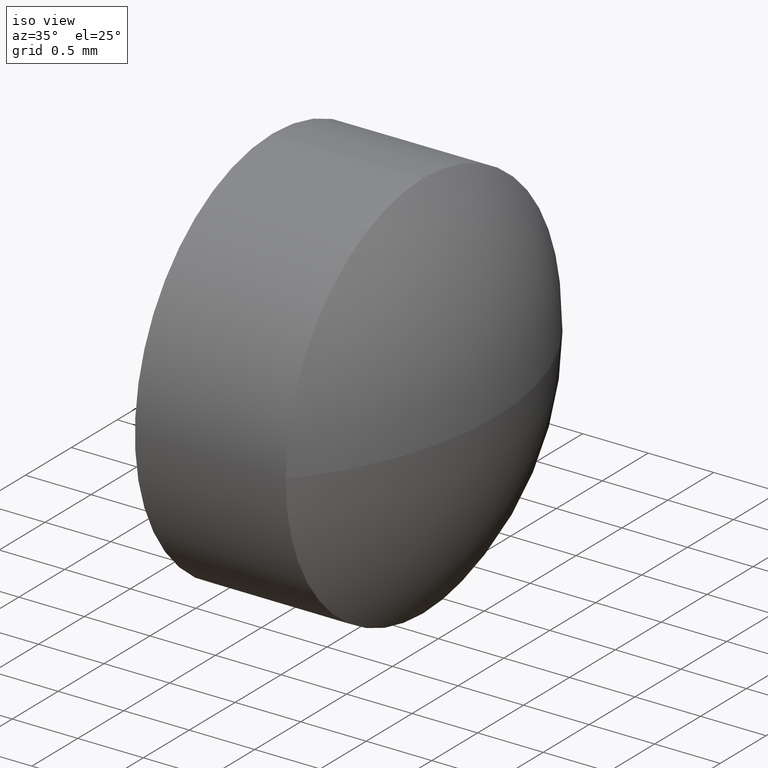
[diagram: clean part render]
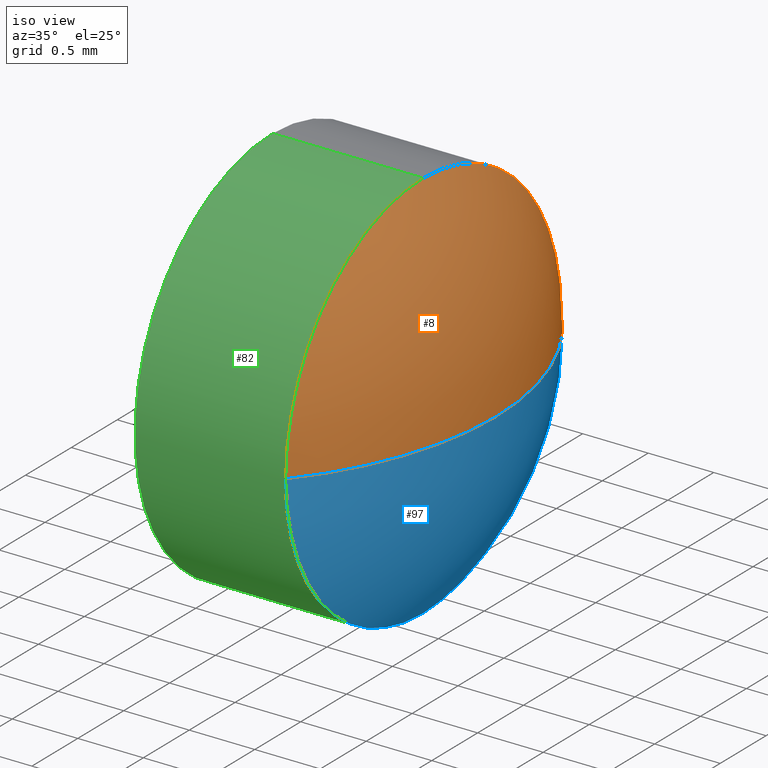
[diagram: same view with three faces highlighted in distinct colors, each labeled with its STEP entity id]
A machine part, iso view with three faces highlighted in distinct colors.
Their STEP definitions:

[orange] entity #8 — the highlighted spherical surface has radius 2.3205 mm.
#1 = EDGE_CURVE ( 'NONE', #60, #130, #117, .T. ) ;
#4 = CARTESIAN_POINT ( 'NONE',  ( 657.5211266645158000, -16.36571679359242600, 0.0000000000000000000 ) ) ;
#8 = ADVANCED_FACE ( 'NONE', ( #15 ), #142, .T. ) ;
#15 = FACE_OUTER_BOUND ( 'NONE', #134, .T. ) ;
#16 = AXIS2_PLACEMENT_3D ( 'NONE', #86, #154, #159 ) ;
#26 = CARTESIAN_POINT ( 'NONE',  ( 657.5211266645158000, -16.36571679359242600, 0.0000000000000000000 ) ) ;
#32 = DIRECTION ( 'NONE',  ( 0.0000000000000000000, 1.000000000000000000, 0.0000000000000000000 ) ) ;
#39 = DIRECTION ( 'NONE',  ( 0.0000000000000000000, 1.000000000000000000, 1.224646799147353200E-016 ) ) ;
#43 = CIRCLE ( 'NONE', #50, 2.320454545454597700 ) ;
#49 = CARTESIAN_POINT ( 'NONE',  ( 659.2915812099703300, -16.36571679359241200, 1.499999999999999600 ) ) ;
#50 = AXIS2_PLACEMENT_3D ( 'NONE', #26, #74, #122 ) ;
#56 = ORIENTED_EDGE ( 'NONE', *, *, #1, .F. ) ;
#57 = EDGE_CURVE ( 'NONE', #143, #60, #90, .T. ) ;
#60 = VERTEX_POINT ( 'NONE', #49 ) ;
#61 = DIRECTION ( 'NONE',  ( 0.0000000000000000000, 0.0000000000000000000, 1.000000000000000000 ) ) ;
#64 = CARTESIAN_POINT ( 'NONE',  ( 659.2915812099703300, -14.86571679359239800, 0.0000000000000000000 ) ) ;
#66 = AXIS2_PLACEMENT_3D ( 'NONE', #4, #87, #32 ) ;
#74 = DIRECTION ( 'NONE',  ( -0.0000000000000000000, 0.0000000000000000000, 1.000000000000000000 ) ) ;
#75 = CARTESIAN_POINT ( 'NONE',  ( 659.2915812099703300, -17.86571679359244100, -1.836970198721050400E-016 ) ) ;
#86 = CARTESIAN_POINT ( 'NONE',  ( 659.2915812099703300, -16.36571679359241200, 0.0000000000000000000 ) ) ;
#87 = DIRECTION ( 'NONE',  ( -0.0000000000000000000, 0.0000000000000000000, -1.000000000000000000 ) ) ;
#89 = AXIS2_PLACEMENT_3D ( 'NONE', #133, #100, #61 ) ;
#90 = CIRCLE ( 'NONE', #89, 1.499999999999999600 ) ;
#100 = DIRECTION ( 'NONE',  ( -1.000000000000000000, -0.0000000000000000000, -0.0000000000000000000 ) ) ;
#117 = CIRCLE ( 'NONE', #16, 1.499999999999999600 ) ;
#122 = DIRECTION ( 'NONE',  ( 1.000000000000000000, 0.0000000000000000000, 0.0000000000000000000 ) ) ;
#126 = CIRCLE ( 'NONE', #161, 2.320454545454576900 ) ;
#130 = VERTEX_POINT ( 'NONE', #64 ) ;
#133 = CARTESIAN_POINT ( 'NONE',  ( 659.2915812099703300, -16.36571679359241200, 0.0000000000000000000 ) ) ;
#134 = EDGE_LOOP ( 'NONE', ( #185, #170, #56, #164 ) ) ;
#136 = CARTESIAN_POINT ( 'NONE',  ( 657.5211266645158000, -16.36571679359242600, 0.0000000000000000000 ) ) ;
#142 = SPHERICAL_SURFACE ( 'NONE', #66, 2.320454545454576900 ) ;
#143 = VERTEX_POINT ( 'NONE', #75 ) ;
#154 = DIRECTION ( 'NONE',  ( -1.000000000000000000, -0.0000000000000000000, -0.0000000000000000000 ) ) ;
#159 = DIRECTION ( 'NONE',  ( 0.0000000000000000000, 0.0000000000000000000, 1.000000000000000000 ) ) ;
#161 = AXIS2_PLACEMENT_3D ( 'NONE', #136, #184, #39 ) ;
#163 = CARTESIAN_POINT ( 'NONE',  ( 659.8415812099704000, -16.36571679359242600, 0.0000000000000000000 ) ) ;
#164 = ORIENTED_EDGE ( 'NONE', *, *, #57, .F. ) ;
#167 = EDGE_CURVE ( 'NONE', #186, #130, #43, .T. ) ;
#170 = ORIENTED_EDGE ( 'NONE', *, *, #167, .T. ) ;
#175 = EDGE_CURVE ( 'NONE', #186, #143, #126, .T. ) ;
#184 = DIRECTION ( 'NONE',  ( 0.0000000000000000000, 1.224646799147353200E-016, -1.000000000000000000 ) ) ;
#185 = ORIENTED_EDGE ( 'NONE', *, *, #175, .F. ) ;
#186 = VERTEX_POINT ( 'NONE', #163 ) ;

[blue] entity #97 — the highlighted spherical surface has radius 2.3205 mm.
#3 = DIRECTION ( 'NONE',  ( 0.0000000000000000000, 0.0000000000000000000, 1.000000000000000000 ) ) ;
#9 = SPHERICAL_SURFACE ( 'NONE', #28, 2.320454545454576900 ) ;
#12 = EDGE_CURVE ( 'NONE', #146, #143, #98, .T. ) ;
#17 = EDGE_CURVE ( 'NONE', #130, #146, #69, .T. ) ;
#26 = CARTESIAN_POINT ( 'NONE',  ( 657.5211266645158000, -16.36571679359242600, 0.0000000000000000000 ) ) ;
#28 = AXIS2_PLACEMENT_3D ( 'NONE', #171, #109, #125 ) ;
#29 = DIRECTION ( 'NONE',  ( 0.0000000000000000000, 0.0000000000000000000, 1.000000000000000000 ) ) ;
#39 = DIRECTION ( 'NONE',  ( 0.0000000000000000000, 1.000000000000000000, 1.224646799147353200E-016 ) ) ;
#43 = CIRCLE ( 'NONE', #50, 2.320454545454597700 ) ;
#47 = CARTESIAN_POINT ( 'NONE',  ( 659.2915812099703300, -16.36571679359241200, 0.0000000000000000000 ) ) ;
#50 = AXIS2_PLACEMENT_3D ( 'NONE', #26, #74, #122 ) ;
#64 = CARTESIAN_POINT ( 'NONE',  ( 659.2915812099703300, -14.86571679359239800, 0.0000000000000000000 ) ) ;
#67 = ORIENTED_EDGE ( 'NONE', *, *, #175, .T. ) ;
#69 = CIRCLE ( 'NONE', #179, 1.499999999999999600 ) ;
#70 = ORIENTED_EDGE ( 'NONE', *, *, #17, .F. ) ;
#74 = DIRECTION ( 'NONE',  ( -0.0000000000000000000, 0.0000000000000000000, 1.000000000000000000 ) ) ;
#75 = CARTESIAN_POINT ( 'NONE',  ( 659.2915812099703300, -17.86571679359244100, -1.836970198721050400E-016 ) ) ;
#88 = EDGE_LOOP ( 'NONE', ( #152, #67, #96, #70 ) ) ;
#95 = AXIS2_PLACEMENT_3D ( 'NONE', #121, #104, #3 ) ;
#96 = ORIENTED_EDGE ( 'NONE', *, *, #12, .F. ) ;
#97 = ADVANCED_FACE ( 'NONE', ( #149 ), #9, .T. ) ;
#98 = CIRCLE ( 'NONE', #95, 1.499999999999999600 ) ;
#104 = DIRECTION ( 'NONE',  ( -1.000000000000000000, -0.0000000000000000000, -0.0000000000000000000 ) ) ;
#109 = DIRECTION ( 'NONE',  ( -0.0000000000000000000, 0.0000000000000000000, -1.000000000000000000 ) ) ;
#119 = DIRECTION ( 'NONE',  ( -1.000000000000000000, -0.0000000000000000000, -0.0000000000000000000 ) ) ;
#121 = CARTESIAN_POINT ( 'NONE',  ( 659.2915812099703300, -16.36571679359241200, 0.0000000000000000000 ) ) ;
#122 = DIRECTION ( 'NONE',  ( 1.000000000000000000, 0.0000000000000000000, 0.0000000000000000000 ) ) ;
#125 = DIRECTION ( 'NONE',  ( 0.0000000000000000000, 1.000000000000000000, 0.0000000000000000000 ) ) ;
#126 = CIRCLE ( 'NONE', #161, 2.320454545454576900 ) ;
#130 = VERTEX_POINT ( 'NONE', #64 ) ;
#136 = CARTESIAN_POINT ( 'NONE',  ( 657.5211266645158000, -16.36571679359242600, 0.0000000000000000000 ) ) ;
#143 = VERTEX_POINT ( 'NONE', #75 ) ;
#146 = VERTEX_POINT ( 'NONE', #165 ) ;
#149 = FACE_OUTER_BOUND ( 'NONE', #88, .T. ) ;
#152 = ORIENTED_EDGE ( 'NONE', *, *, #167, .F. ) ;
#161 = AXIS2_PLACEMENT_3D ( 'NONE', #136, #184, #39 ) ;
#163 = CARTESIAN_POINT ( 'NONE',  ( 659.8415812099704000, -16.36571679359242600, 0.0000000000000000000 ) ) ;
#165 = CARTESIAN_POINT ( 'NONE',  ( 659.2915812099703300, -16.36571679359241200, -1.499999999999999600 ) ) ;
#167 = EDGE_CURVE ( 'NONE', #186, #130, #43, .T. ) ;
#171 = CARTESIAN_POINT ( 'NONE',  ( 657.5211266645158000, -16.36571679359242600, 0.0000000000000000000 ) ) ;
#175 = EDGE_CURVE ( 'NONE', #186, #143, #126, .T. ) ;
#179 = AXIS2_PLACEMENT_3D ( 'NONE', #47, #119, #29 ) ;
#184 = DIRECTION ( 'NONE',  ( 0.0000000000000000000, 1.224646799147353200E-016, -1.000000000000000000 ) ) ;
#186 = VERTEX_POINT ( 'NONE', #163 ) ;

[green] entity #82 — the highlighted cylindrical surface (partial cylindrical patch) has radius 1.5 mm, axis along (-1, -0, -0).
#3 = DIRECTION ( 'NONE',  ( 0.0000000000000000000, 0.0000000000000000000, 1.000000000000000000 ) ) ;
#12 = EDGE_CURVE ( 'NONE', #146, #143, #98, .T. ) ;
#14 = LINE ( 'NONE', #21, #79 ) ;
#21 = CARTESIAN_POINT ( 'NONE',  ( 657.7378520608252800, -16.36571679359241200, -1.499999999999999600 ) ) ;
#24 = ORIENTED_EDGE ( 'NONE', *, *, #78, .F. ) ;
#25 = DIRECTION ( 'NONE',  ( -1.000000000000000000, -0.0000000000000000000, -0.0000000000000000000 ) ) ;
#30 = DIRECTION ( 'NONE',  ( -1.000000000000000000, -0.0000000000000000000, -0.0000000000000000000 ) ) ;
#35 = CYLINDRICAL_SURFACE ( 'NONE', #151, 1.499999999999999600 ) ;
#37 = CARTESIAN_POINT ( 'NONE',  ( 657.7378520608252800, -16.36571679359241200, 1.499999999999999600 ) ) ;
#46 = AXIS2_PLACEMENT_3D ( 'NONE', #73, #107, #156 ) ;
#48 = CARTESIAN_POINT ( 'NONE',  ( 657.7378520608252800, -16.36571679359241200, 0.0000000000000000000 ) ) ;
#49 = CARTESIAN_POINT ( 'NONE',  ( 659.2915812099703300, -16.36571679359241200, 1.499999999999999600 ) ) ;
#53 = VERTEX_POINT ( 'NONE', #103 ) ;
#54 = EDGE_CURVE ( 'NONE', #83, #53, #71, .T. ) ;
#57 = EDGE_CURVE ( 'NONE', #143, #60, #90, .T. ) ;
#60 = VERTEX_POINT ( 'NONE', #49 ) ;
#61 = DIRECTION ( 'NONE',  ( 0.0000000000000000000, 0.0000000000000000000, 1.000000000000000000 ) ) ;
#63 = VECTOR ( 'NONE', #25, 1000.000000000000000 ) ;
#71 = CIRCLE ( 'NONE', #46, 1.499999999999999600 ) ;
#73 = CARTESIAN_POINT ( 'NONE',  ( 658.1415812099703500, -16.36571679359241200, 0.0000000000000000000 ) ) ;
#75 = CARTESIAN_POINT ( 'NONE',  ( 659.2915812099703300, -17.86571679359244100, -1.836970198721050400E-016 ) ) ;
#78 = EDGE_CURVE ( 'NONE', #146, #83, #14, .T. ) ;
#79 = VECTOR ( 'NONE', #30, 1000.000000000000000 ) ;
#80 = EDGE_LOOP ( 'NONE', ( #24, #139, #172, #106, #131 ) ) ;
#82 = ADVANCED_FACE ( 'NONE', ( #157 ), #35, .T. ) ;
#83 = VERTEX_POINT ( 'NONE', #137 ) ;
#89 = AXIS2_PLACEMENT_3D ( 'NONE', #133, #100, #61 ) ;
#90 = CIRCLE ( 'NONE', #89, 1.499999999999999600 ) ;
#95 = AXIS2_PLACEMENT_3D ( 'NONE', #121, #104, #3 ) ;
#98 = CIRCLE ( 'NONE', #95, 1.499999999999999600 ) ;
#100 = DIRECTION ( 'NONE',  ( -1.000000000000000000, -0.0000000000000000000, -0.0000000000000000000 ) ) ;
#103 = CARTESIAN_POINT ( 'NONE',  ( 658.1415812099703500, -16.36571679359241200, 1.499999999999999600 ) ) ;
#104 = DIRECTION ( 'NONE',  ( -1.000000000000000000, -0.0000000000000000000, -0.0000000000000000000 ) ) ;
#106 = ORIENTED_EDGE ( 'NONE', *, *, #118, .T. ) ;
#107 = DIRECTION ( 'NONE',  ( -1.000000000000000000, -0.0000000000000000000, -0.0000000000000000000 ) ) ;
#118 = EDGE_CURVE ( 'NONE', #60, #53, #145, .T. ) ;
#121 = CARTESIAN_POINT ( 'NONE',  ( 659.2915812099703300, -16.36571679359241200, 0.0000000000000000000 ) ) ;
#131 = ORIENTED_EDGE ( 'NONE', *, *, #54, .F. ) ;
#133 = CARTESIAN_POINT ( 'NONE',  ( 659.2915812099703300, -16.36571679359241200, 0.0000000000000000000 ) ) ;
#137 = CARTESIAN_POINT ( 'NONE',  ( 658.1415812099703500, -16.36571679359241200, -1.499999999999999600 ) ) ;
#139 = ORIENTED_EDGE ( 'NONE', *, *, #12, .T. ) ;
#143 = VERTEX_POINT ( 'NONE', #75 ) ;
#145 = LINE ( 'NONE', #37, #63 ) ;
#146 = VERTEX_POINT ( 'NONE', #165 ) ;
#151 = AXIS2_PLACEMENT_3D ( 'NONE', #48, #166, #162 ) ;
#156 = DIRECTION ( 'NONE',  ( 0.0000000000000000000, 0.0000000000000000000, 1.000000000000000000 ) ) ;
#157 = FACE_OUTER_BOUND ( 'NONE', #80, .T. ) ;
#162 = DIRECTION ( 'NONE',  ( 0.0000000000000000000, 0.0000000000000000000, 1.000000000000000000 ) ) ;
#165 = CARTESIAN_POINT ( 'NONE',  ( 659.2915812099703300, -16.36571679359241200, -1.499999999999999600 ) ) ;
#166 = DIRECTION ( 'NONE',  ( -1.000000000000000000, -0.0000000000000000000, -0.0000000000000000000 ) ) ;
#172 = ORIENTED_EDGE ( 'NONE', *, *, #57, .T. ) ;